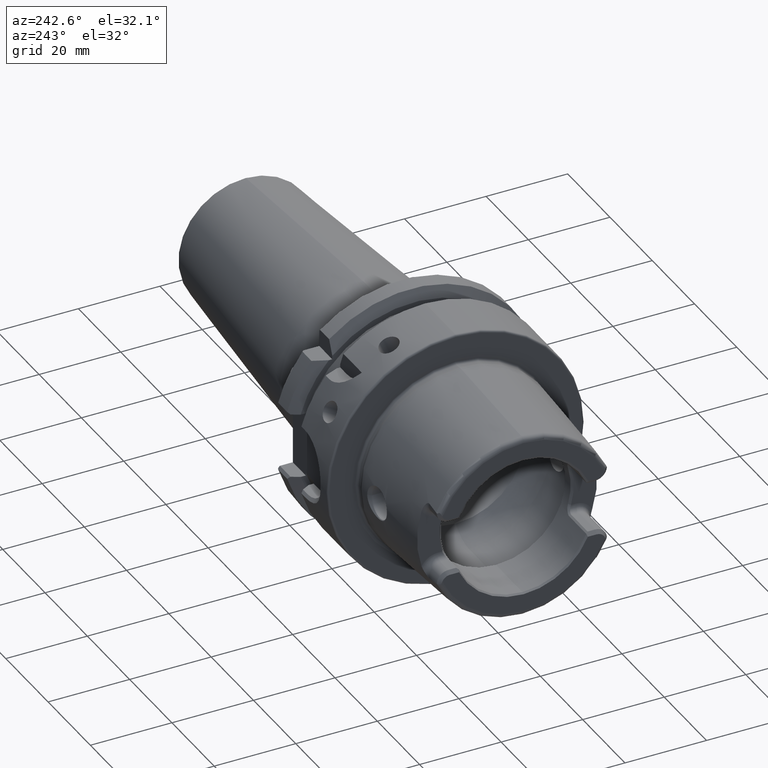
[diagram: clean part render]
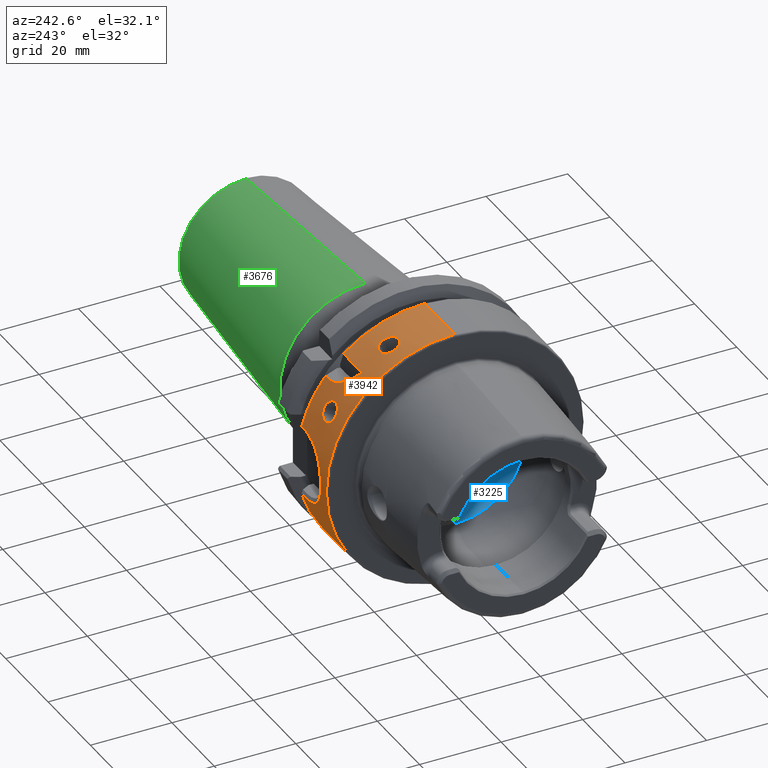
[diagram: same view with three faces highlighted in distinct colors, each labeled with its STEP entity id]
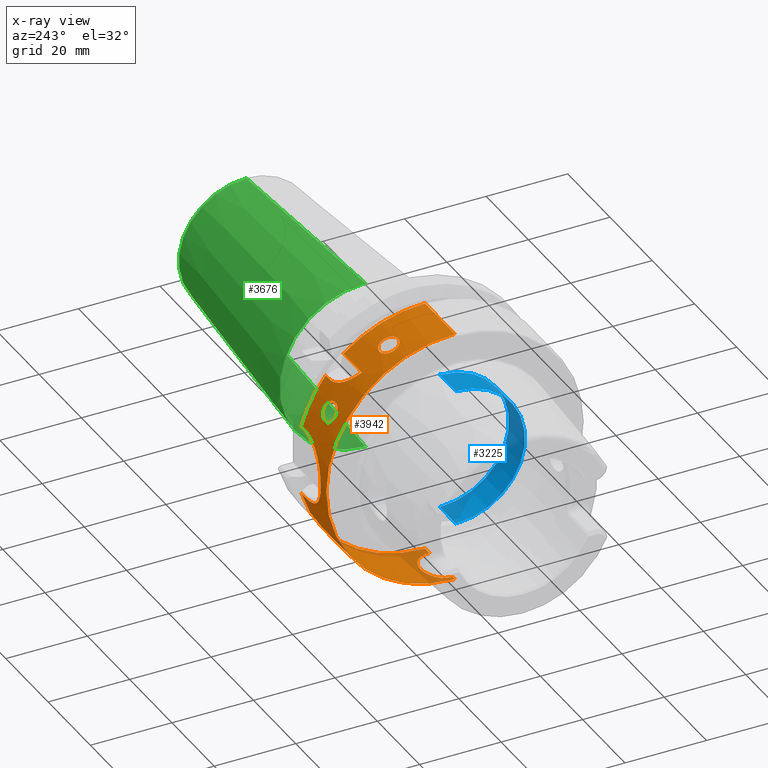
[diagram: x-ray of the same camera — body ghosted, the three highlighted faces saturated]
A machine part, auxiliary view with three faces highlighted in distinct colors.
The next image is the same camera in x-ray (body ghosted, the three faces saturated) — at least one of them is partly hidden behind the body in this view.
Their STEP definitions:

[orange] entity #3942 — the highlighted cylindrical surface (partial cylindrical patch) has radius 31.5 mm, axis along (1, 0, 0).
#711=DIRECTION('',(-1.E0,-1.152697855394E-12,0.E0));
#712=VECTOR('',#711,1.412250090457E1);
#713=CARTESIAN_POINT('',(1.462250090457E1,0.E0,3.15E1));
#714=LINE('',#713,#712);
#770=DIRECTION('',(-1.E0,0.E0,0.E0));
#771=VECTOR('',#770,2.122500904567E0);
#772=CARTESIAN_POINT('',(1.462250090457E1,0.E0,-3.15E1));
#773=LINE('',#772,#771);
#794=DIRECTION('',(-1.E0,-3.500326402276E-12,0.E0));
#795=VECTOR('',#794,1.E0);
#796=CARTESIAN_POINT('',(1.5E0,0.E0,-3.15E1));
#797=LINE('',#796,#795);
#811=CARTESIAN_POINT('',(5.E-1,0.E0,0.E0));
#812=DIRECTION('',(-1.E0,0.E0,0.E0));
#813=DIRECTION('',(0.E0,0.E0,1.E0));
#814=AXIS2_PLACEMENT_3D('',#811,#812,#813);
#816=CARTESIAN_POINT('',(1.25E1,0.E0,-3.15E1));
#817=CARTESIAN_POINT('',(1.25E1,3.591179016958E-1,-3.15E1));
#818=CARTESIAN_POINT('',(1.241877060514E1,1.049176716839E0,-3.148780969961E1));
#819=CARTESIAN_POINT('',(1.208888151745E1,2.007789554012E0,-3.144033464909E1));
#820=CARTESIAN_POINT('',(1.158303499725E1,2.863034778919E0,-3.137310892711E1));
#821=CARTESIAN_POINT('',(1.090471174494E1,3.623449915998E0,-3.129357789396E1));
#822=CARTESIAN_POINT('',(1.006459553458E1,4.261252464667E0,-3.121215533395E1));
#823=CARTESIAN_POINT('',(9.088026015445E0,4.740243014212E0,-3.114207085875E1));
#824=CARTESIAN_POINT('',(8.055144265708E0,5.024239826024E0,-3.109689332850E1));
#825=CARTESIAN_POINT('',(6.991255526220E0,5.118492193282E0,-3.108133183436E1));
#826=CARTESIAN_POINT('',(5.929304176130E0,5.021338939589E0,-3.109736870211E1));
#827=CARTESIAN_POINT('',(4.897654838810E0,4.734729497616E0,-3.114291627253E1));
#828=CARTESIAN_POINT('',(3.923322314250E0,4.253904907756E0,-3.121317796639E1));
#829=CARTESIAN_POINT('',(3.081999010349E0,3.611475324829E0,-3.129499592086E1));
#830=CARTESIAN_POINT('',(2.405524185626E0,2.847462453288E0,-3.137455446046E1));
#831=CARTESIAN_POINT('',(1.903178736620E0,1.990202842849E0,-3.144144823364E1));
#832=CARTESIAN_POINT('',(1.578888425808E0,1.035924841317E0,-3.148816306394E1));
#833=CARTESIAN_POINT('',(1.5E0,3.538898695661E-1,-3.15E1));
#834=CARTESIAN_POINT('',(1.5E0,0.E0,-3.15E1));
#836=CARTESIAN_POINT('',(1.462250090457E1,0.E0,0.E0));
#837=DIRECTION('',(1.E0,0.E0,0.E0));
#838=DIRECTION('',(0.E0,0.E0,-1.E0));
#839=AXIS2_PLACEMENT_3D('',#836,#837,#838);
#841=DIRECTION('',(1.E0,0.E0,0.E0));
#842=VECTOR('',#841,1.622500904567E0);
#843=CARTESIAN_POINT('',(1.3E1,3.030257052423E1,-8.602570524226E0));
#844=LINE('',#843,#842);
#845=CARTESIAN_POINT('',(1.3E1,3.030257052423E1,-8.602570524226E0));
#846=CARTESIAN_POINT('',(1.235541835287E1,3.030257052423E1,-8.602570524226E0));
#847=CARTESIAN_POINT('',(1.109372968304E1,3.033423153458E1,-8.492196080456E0));
#848=CARTESIAN_POINT('',(9.248264611222E0,3.046933517118E1,-8.000909647176E0));
#849=CARTESIAN_POINT('',(7.555884268441E0,3.066964465669E1,-7.205952655409E0));
#850=CARTESIAN_POINT('',(6.088763746981E0,3.090017764345E1,-6.155508171550E0));
#851=CARTESIAN_POINT('',(4.907613818030E0,3.112281076593E1,-4.919449967846E0));
#852=CARTESIAN_POINT('',(4.035296228860E0,3.130752418742E1,-3.569140413675E0));
#853=CARTESIAN_POINT('',(3.467126615443E0,3.143679507039E1,-2.158791178254E0));
#854=CARTESIAN_POINT('',(3.188348549717E0,3.150274417315E1,-7.219689524247E-1));
#855=CARTESIAN_POINT('',(3.188351309952E0,3.150274350794E1,7.219960352426E-1));
#856=CARTESIAN_POINT('',(3.467133324851E0,3.143679352027E1,2.158810680109E0));
#857=CARTESIAN_POINT('',(4.035299491244E0,3.130752347964E1,3.569145798460E0));
#858=CARTESIAN_POINT('',(4.907619317801E0,3.112280964165E1,4.919457341111E0));
#859=CARTESIAN_POINT('',(6.088770538561E0,3.090017648968E1,6.155513669787E0));
#860=CARTESIAN_POINT('',(7.555887404237E0,3.066964426780E1,7.205954206590E0));
#861=CARTESIAN_POINT('',(9.248266760131E0,3.046933495101E1,8.000910488809E0));
#862=CARTESIAN_POINT('',(1.109373293521E1,3.033423138205E1,8.492196614850E0));
#863=CARTESIAN_POINT('',(1.235541965801E1,3.030257052423E1,8.602570524226E0));
#864=CARTESIAN_POINT('',(1.3E1,3.030257052423E1,8.602570524226E0));
#866=DIRECTION('',(1.E0,0.E0,0.E0));
#867=VECTOR('',#866,1.622500904567E0);
#868=CARTESIAN_POINT('',(1.3E1,3.030257052423E1,8.602570524226E0));
#869=LINE('',#868,#867);
#870=CARTESIAN_POINT('',(1.462250090457E1,0.E0,0.E0));
#871=DIRECTION('',(1.E0,0.E0,0.E0));
#872=DIRECTION('',(0.E0,9.619863658485E-1,2.730974769596E-1));
#873=AXIS2_PLACEMENT_3D('',#870,#871,#872);
#875=DIRECTION('',(1.E0,0.E0,0.E0));
#876=VECTOR('',#875,1.622500904567E0);
#877=CARTESIAN_POINT('',(1.3E1,2.433618704728E1,2.E1));
#878=LINE('',#877,#876);
#879=CARTESIAN_POINT('',(5.888286096344E0,2.E1,2.433618704728E1));
#880=CARTESIAN_POINT('',(5.979841110901E0,2.021624479285E1,2.415847244274E1));
#881=CARTESIAN_POINT('',(6.178964055433E0,2.063505528873E1,2.380463264103E1));
#882=CARTESIAN_POINT('',(6.529290349012E0,2.122336114799E1,2.328123619400E1));
#883=CARTESIAN_POINT('',(6.934185786704E0,2.177041926319E1,2.277004743860E1));
#884=CARTESIAN_POINT('',(7.395470581921E0,2.227363444044E1,2.227755184076E1));
#885=CARTESIAN_POINT('',(7.915511267172E0,2.273117164906E1,2.180996325233E1));
#886=CARTESIAN_POINT('',(8.494651142790E0,2.313957745525E1,2.137559509570E1));
#887=CARTESIAN_POINT('',(9.133373456560E0,2.349590004479E1,2.098269866103E1));
#888=CARTESIAN_POINT('',(9.827602999986E0,2.379530983774E1,2.064193255373E1));
#889=CARTESIAN_POINT('',(1.057250362730E1,2.403390563889E1,2.036307977068E1));
#890=CARTESIAN_POINT('',(1.135757184338E1,2.420737036833E1,2.015610491514E1));
#891=CARTESIAN_POINT('',(1.217313527813E1,2.431273139834E1,2.002859294578E1));
#892=CARTESIAN_POINT('',(1.272260838370E1,2.433618704728E1,2.E1));
#893=CARTESIAN_POINT('',(1.3E1,2.433618704728E1,2.E1));
#895=DIRECTION('',(1.E0,0.E0,0.E0));
#896=VECTOR('',#895,8.734214808223E0);
#897=CARTESIAN_POINT('',(5.888286096344E0,2.E1,2.433618704728E1));
#898=LINE('',#897,#896);
#899=CARTESIAN_POINT('',(1.462250090457E1,0.E0,0.E0));
#900=DIRECTION('',(1.E0,0.E0,0.E0));
#901=DIRECTION('',(0.E0,6.349206349206E-1,7.725773665802E-1));
#902=AXIS2_PLACEMENT_3D('',#899,#900,#901);
#904=CARTESIAN_POINT('',(7.E0,1.048792601377E1,2.970275084785E1));
#905=CARTESIAN_POINT('',(6.802284525844E0,1.048792601377E1,2.970275084785E1));
#906=CARTESIAN_POINT('',(6.415956362855E0,1.053000828392E1,2.968795788573E1));
#907=CARTESIAN_POINT('',(5.835520236530E0,1.073329285939E1,2.961539446600E1));
#908=CARTESIAN_POINT('',(5.338865174867E0,1.105313070426E1,2.949799642861E1));
#909=CARTESIAN_POINT('',(4.933147778579E0,1.147607742680E1,2.933648695426E1));
#910=CARTESIAN_POINT('',(4.650970895156E0,1.196336414671E1,2.914163101280E1));
#911=CARTESIAN_POINT('',(4.497318778306E0,1.251103674698E1,2.891098269294E1));
#912=CARTESIAN_POINT('',(4.489867977867E0,1.306055214852E1,2.866698467963E1));
#913=CARTESIAN_POINT('',(4.632528901150E0,1.361030093004E1,2.840989978286E1));
#914=CARTESIAN_POINT('',(4.911239559409E0,1.409536526788E1,2.817188938195E1));
#915=CARTESIAN_POINT('',(5.318335564972E0,1.450994163974E1,2.796011300701E1));
#916=CARTESIAN_POINT('',(5.817706515600E0,1.481904178764E1,2.779698994859E1));
#917=CARTESIAN_POINT('',(6.407436795489E0,1.501546414401E1,2.769101327978E1));
#918=CARTESIAN_POINT('',(6.799276851427E0,1.505565330198E1,2.766906763247E1));
#919=CARTESIAN_POINT('',(7.E0,1.505565330198E1,2.766906763247E1));
#921=CARTESIAN_POINT('',(7.E0,1.505565330198E1,2.766906763247E1));
#922=CARTESIAN_POINT('',(7.216758209596E0,1.505565330198E1,2.766906763247E1));
#923=CARTESIAN_POINT('',(7.638088338046E0,1.500779870639E1,2.769518275357E1));
#924=CARTESIAN_POINT('',(8.254145299815E0,1.478880460707E1,2.781326796640E1));
#925=CARTESIAN_POINT('',(8.792406388011E0,1.442264801340E1,2.800557112396E1));
#926=CARTESIAN_POINT('',(9.190984559259E0,1.395502564772E1,2.824208031562E1));
#927=CARTESIAN_POINT('',(9.442403111712E0,1.340849415034E1,2.850610422381E1));
#928=CARTESIAN_POINT('',(9.528471297477E0,1.281403684970E1,2.877838375227E1));
#929=CARTESIAN_POINT('',(9.443708466172E0,1.221757970337E1,2.903644683210E1));
#930=CARTESIAN_POINT('',(9.193934997278E0,1.165486776358E1,2.926640933960E1));
#931=CARTESIAN_POINT('',(8.796093757839E0,1.116470616185E1,2.945632212539E1));
#932=CARTESIAN_POINT('',(8.254947878404E0,1.077379544614E1,2.960088540165E1));
#933=CARTESIAN_POINT('',(7.638227494305E0,1.053939599961E1,2.968464561730E1));
#934=CARTESIAN_POINT('',(7.216695711763E0,1.048792601377E1,2.970275084785E1));
#935=CARTESIAN_POINT('',(7.E0,1.048792601377E1,2.970275084785E1));
#937=CARTESIAN_POINT('',(7.E0,2.594374928177E1,1.786538197757E1));
#938=CARTESIAN_POINT('',(6.802284525844E0,2.594374928177E1,1.786538197757E1));
#939=CARTESIAN_POINT('',(6.415956362855E0,2.596909946851E1,1.782867888203E1));
#940=CARTESIAN_POINT('',(5.835520236530E0,2.609090843678E1,1.765048616683E1));
#941=CARTESIAN_POINT('',(5.338865174867E0,2.628065785371E1,1.736751319113E1));
#942=CARTESIAN_POINT('',(4.933147778579E0,2.652789605283E1,1.698824743562E1));
#943=CARTESIAN_POINT('',(4.650970895156E0,2.680758584166E1,1.654418571992E1));
#944=CARTESIAN_POINT('',(4.497318778306E0,2.711509060175E1,1.603567343191E1));
#945=CARTESIAN_POINT('',(4.489867977867E0,2.741623946645E1,1.551527784361E1));
#946=CARTESIAN_POINT('',(4.632528901150E0,2.770988486243E1,1.498415756688E1));
#947=CARTESIAN_POINT('',(4.911239559409E0,2.796241115156E1,1.450648944351E1));
#948=CARTESIAN_POINT('',(5.318335564972E0,2.817333145190E1,1.409147687985E1));
#949=CARTESIAN_POINT('',(5.817706515600E0,2.832751739645E1,1.377782304500E1));
#950=CARTESIAN_POINT('',(6.407436795489E0,2.842413489782E1,1.357663195463E1));
#951=CARTESIAN_POINT('',(6.799276851427E0,2.844374928177E1,1.353525495865E1));
#952=CARTESIAN_POINT('',(7.E0,2.844374928177E1,1.353525495865E1));
#954=CARTESIAN_POINT('',(7.E0,2.844374928177E1,1.353525495865E1));
#955=CARTESIAN_POINT('',(7.216758209596E0,2.844374928177E1,1.353525495865E1));
#956=CARTESIAN_POINT('',(7.638088338046E0,2.842038418372E1,1.358451076097E1));
#957=CARTESIAN_POINT('',(8.254145299815E0,2.831262298232E1,1.380876520685E1));
#958=CARTESIAN_POINT('',(8.792406388011E0,2.812942903542E1,1.417956317518E1));
#959=CARTESIAN_POINT('',(9.190984559259E0,2.789013120952E1,1.464576466074E1));
#960=CARTESIAN_POINT('',(9.442403111712E0,2.760316729966E1,1.518060764346E1));
#961=CARTESIAN_POINT('',(9.528471297477E0,2.728228313235E1,1.575029964364E1));
#962=CARTESIAN_POINT('',(9.443708466172E0,2.695142483705E1,1.630966577509E1));
#963=CARTESIAN_POINT('',(9.193934997278E0,2.663134988530E1,1.682646313122E1));
#964=CARTESIAN_POINT('',(8.796093757839E0,2.634642875422E1,1.726821556311E1));
#965=CARTESIAN_POINT('',(8.254947878404E0,2.611514750374E1,1.761494126403E1));
#966=CARTESIAN_POINT('',(7.638227494305E0,2.597474738751E1,1.782048123975E1));
#967=CARTESIAN_POINT('',(7.216695711763E0,2.594374928177E1,1.786538197757E1));
#968=CARTESIAN_POINT('',(7.E0,2.594374928177E1,1.786538197757E1));
#2661=CARTESIAN_POINT('',(5.888286096344E0,2.E1,2.433618704728E1));
#2662=CARTESIAN_POINT('',(1.462250090457E1,2.E1,2.433618704728E1));
#2663=VERTEX_POINT('',#2661);
#2664=VERTEX_POINT('',#2662);
#2665=CARTESIAN_POINT('',(1.3E1,2.433618704728E1,2.E1));
#2666=CARTESIAN_POINT('',(1.462250090457E1,2.433618704728E1,2.E1));
#2667=VERTEX_POINT('',#2665);
#2668=VERTEX_POINT('',#2666);
#2681=CARTESIAN_POINT('',(1.462250090457E1,0.E0,3.15E1));
#2682=VERTEX_POINT('',#2681);
#2824=VERTEX_POINT('',#816);
#2825=VERTEX_POINT('',#834);
#2834=CARTESIAN_POINT('',(1.462250090457E1,0.E0,-3.15E1));
#2835=VERTEX_POINT('',#2834);
#2881=CARTESIAN_POINT('',(1.3E1,3.030257052423E1,8.602570524226E0));
#2882=CARTESIAN_POINT('',(1.462250090457E1,3.030257052423E1,8.602570524226E0));
#2883=VERTEX_POINT('',#2881);
#2884=VERTEX_POINT('',#2882);
#2885=VERTEX_POINT('',#845);
#2886=CARTESIAN_POINT('',(1.462250090457E1,3.030257052423E1,-8.602570524226E0));
#2887=VERTEX_POINT('',#2886);
#2906=CARTESIAN_POINT('',(5.E-1,0.E0,3.15E1));
#2907=CARTESIAN_POINT('',(5.E-1,0.E0,-3.15E1));
#2908=VERTEX_POINT('',#2906);
#2909=VERTEX_POINT('',#2907);
#2930=VERTEX_POINT('',#904);
#2931=VERTEX_POINT('',#919);
#2938=VERTEX_POINT('',#937);
#2939=VERTEX_POINT('',#952);
#3899=CARTESIAN_POINT('',(0.E0,0.E0,0.E0));
#3900=DIRECTION('',(1.E0,0.E0,0.E0));
#3901=DIRECTION('',(0.E0,0.E0,1.E0));
#3902=AXIS2_PLACEMENT_3D('',#3899,#3900,#3901);
#3903=CYLINDRICAL_SURFACE('',#3902,3.15E1);
#3905=ORIENTED_EDGE('',*,*,#3904,.T.);
#3906=ORIENTED_EDGE('',*,*,#3863,.F.);
#3908=ORIENTED_EDGE('',*,*,#3907,.F.);
#3909=ORIENTED_EDGE('',*,*,#3859,.F.);
#3911=ORIENTED_EDGE('',*,*,#3910,.T.);
#3912=ORIENTED_EDGE('',*,*,#3873,.F.);
#3914=ORIENTED_EDGE('',*,*,#3913,.T.);
#3916=ORIENTED_EDGE('',*,*,#3915,.T.);
#3918=ORIENTED_EDGE('',*,*,#3917,.T.);
#3920=ORIENTED_EDGE('',*,*,#3919,.F.);
#3922=ORIENTED_EDGE('',*,*,#3921,.F.);
#3924=ORIENTED_EDGE('',*,*,#3923,.T.);
#3926=ORIENTED_EDGE('',*,*,#3925,.T.);
#3927=ORIENTED_EDGE('',*,*,#3843,.T.);
#3928=EDGE_LOOP('',(#3905,#3906,#3908,#3909,#3911,#3912,#3914,#3916,#3918,#3920,
#3922,#3924,#3926,#3927));
#3929=FACE_OUTER_BOUND('',#3928,.F.);
#3931=ORIENTED_EDGE('',*,*,#3930,.F.);
#3933=ORIENTED_EDGE('',*,*,#3932,.F.);
#3934=EDGE_LOOP('',(#3931,#3933));
#3935=FACE_BOUND('',#3934,.F.);
#3937=ORIENTED_EDGE('',*,*,#3936,.F.);
#3939=ORIENTED_EDGE('',*,*,#3938,.F.);
#3940=EDGE_LOOP('',(#3937,#3939));
#3941=FACE_BOUND('',#3940,.F.);
#3942=ADVANCED_FACE('',(#3929,#3935,#3941),#3903,.T.);
#815=CIRCLE('',#814,3.15E1);
#835=B_SPLINE_CURVE_WITH_KNOTS('',3,(#816,#817,#818,#819,#820,#821,#822,#823,
#824,#825,#826,#827,#828,#829,#830,#831,#832,#833,#834),.UNSPECIFIED.,.F.,.F.,
(4,1,1,1,1,1,1,1,1,1,1,1,1,1,1,1,4),(0.E0,6.25E-2,1.25E-1,1.875E-1,2.5E-1,
3.125E-1,3.75E-1,4.375E-1,5.E-1,5.625E-1,6.25E-1,6.875E-1,7.5E-1,8.125E-1,
8.75E-1,9.375E-1,1.E0),.UNSPECIFIED.);
#840=CIRCLE('',#839,3.15E1);
#865=B_SPLINE_CURVE_WITH_KNOTS('',3,(#845,#846,#847,#848,#849,#850,#851,#852,
#853,#854,#855,#856,#857,#858,#859,#860,#861,#862,#863,#864),.UNSPECIFIED.,.F.,
.F.,(4,1,1,1,1,1,1,1,1,1,1,1,1,1,1,1,1,4),(0.E0,5.882352941176E-2,
1.176470588235E-1,1.764705882353E-1,2.352941176471E-1,2.941176470588E-1,
3.529411764706E-1,4.117647058824E-1,4.705882352941E-1,5.294117647059E-1,
5.882352941176E-1,6.470588235294E-1,7.058823529412E-1,7.647058823529E-1,
8.235294117647E-1,8.823529411765E-1,9.411764705882E-1,1.E0),.UNSPECIFIED.);
#874=CIRCLE('',#873,3.15E1);
#894=B_SPLINE_CURVE_WITH_KNOTS('',3,(#879,#880,#881,#882,#883,#884,#885,#886,
#887,#888,#889,#890,#891,#892,#893),.UNSPECIFIED.,.F.,.F.,(4,1,1,1,1,1,1,1,1,1,
1,1,4),(0.E0,8.333333333333E-2,1.666666666667E-1,2.5E-1,3.333333333333E-1,
4.166666666667E-1,5.E-1,5.833333333333E-1,6.666666666667E-1,7.5E-1,
8.333333333333E-1,9.166666666667E-1,1.E0),.UNSPECIFIED.);
#903=CIRCLE('',#902,3.15E1);
#920=B_SPLINE_CURVE_WITH_KNOTS('',3,(#904,#905,#906,#907,#908,#909,#910,#911,
#912,#913,#914,#915,#916,#917,#918,#919),.UNSPECIFIED.,.F.,.F.,(4,1,1,1,1,1,1,1,
1,1,1,1,1,4),(0.E0,7.692307692308E-2,1.538461538462E-1,2.307692307692E-1,
3.076923076923E-1,3.846153846154E-1,4.615384615385E-1,5.384615384615E-1,
6.153846153846E-1,6.923076923077E-1,7.692307692308E-1,8.461538461538E-1,
9.230769230769E-1,1.E0),.UNSPECIFIED.);
#936=B_SPLINE_CURVE_WITH_KNOTS('',3,(#921,#922,#923,#924,#925,#926,#927,#928,
#929,#930,#931,#932,#933,#934,#935),.UNSPECIFIED.,.F.,.F.,(4,1,1,1,1,1,1,1,1,1,
1,1,4),(0.E0,8.333333333333E-2,1.666666666667E-1,2.5E-1,3.333333333333E-1,
4.166666666667E-1,5.E-1,5.833333333333E-1,6.666666666667E-1,7.5E-1,
8.333333333333E-1,9.166666666667E-1,1.E0),.UNSPECIFIED.);
#953=B_SPLINE_CURVE_WITH_KNOTS('',3,(#937,#938,#939,#940,#941,#942,#943,#944,
#945,#946,#947,#948,#949,#950,#951,#952),.UNSPECIFIED.,.F.,.F.,(4,1,1,1,1,1,1,1,
1,1,1,1,1,4),(0.E0,7.692307692308E-2,1.538461538462E-1,2.307692307692E-1,
3.076923076923E-1,3.846153846154E-1,4.615384615385E-1,5.384615384615E-1,
6.153846153846E-1,6.923076923077E-1,7.692307692308E-1,8.461538461538E-1,
9.230769230769E-1,1.E0),.UNSPECIFIED.);
#969=B_SPLINE_CURVE_WITH_KNOTS('',3,(#954,#955,#956,#957,#958,#959,#960,#961,
#962,#963,#964,#965,#966,#967,#968),.UNSPECIFIED.,.F.,.F.,(4,1,1,1,1,1,1,1,1,1,
1,1,4),(0.E0,8.333333333333E-2,1.666666666667E-1,2.5E-1,3.333333333333E-1,
4.166666666667E-1,5.E-1,5.833333333333E-1,6.666666666667E-1,7.5E-1,
8.333333333333E-1,9.166666666667E-1,1.E0),.UNSPECIFIED.);
#3843=EDGE_CURVE('',#2682,#2908,#714,.T.);
#3859=EDGE_CURVE('',#2835,#2824,#773,.T.);
#3863=EDGE_CURVE('',#2825,#2909,#797,.T.);
#3873=EDGE_CURVE('',#2885,#2887,#844,.T.);
#3904=EDGE_CURVE('',#2908,#2909,#815,.T.);
#3907=EDGE_CURVE('',#2824,#2825,#835,.T.);
#3910=EDGE_CURVE('',#2835,#2887,#840,.T.);
#3913=EDGE_CURVE('',#2885,#2883,#865,.T.);
#3915=EDGE_CURVE('',#2883,#2884,#869,.T.);
#3917=EDGE_CURVE('',#2884,#2668,#874,.T.);
#3919=EDGE_CURVE('',#2667,#2668,#878,.T.);
#3921=EDGE_CURVE('',#2663,#2667,#894,.T.);
#3923=EDGE_CURVE('',#2663,#2664,#898,.T.);
#3925=EDGE_CURVE('',#2664,#2682,#903,.T.);
#3930=EDGE_CURVE('',#2930,#2931,#920,.T.);
#3932=EDGE_CURVE('',#2931,#2930,#936,.T.);
#3936=EDGE_CURVE('',#2938,#2939,#953,.T.);
#3938=EDGE_CURVE('',#2939,#2938,#969,.T.);

[blue] entity #3225 — the highlighted cylindrical surface (partial cylindrical patch) has radius 17 mm, axis along (1, 0, 0).
#254=DIRECTION('',(-1.E0,0.E0,0.E0));
#255=VECTOR('',#254,7.579836946705E0);
#256=CARTESIAN_POINT('',(7.670843802411E0,0.E0,-1.7E1));
#257=LINE('',#256,#255);
#258=CARTESIAN_POINT('',(7.670843802411E0,0.E0,0.E0));
#259=DIRECTION('',(1.E0,0.E0,0.E0));
#260=DIRECTION('',(0.E0,0.E0,1.E0));
#261=AXIS2_PLACEMENT_3D('',#258,#259,#260);
#263=DIRECTION('',(-1.E0,0.E0,0.E0));
#264=VECTOR('',#263,7.579836946705E0);
#265=CARTESIAN_POINT('',(7.670843802411E0,0.E0,1.7E1));
#266=LINE('',#265,#264);
#267=CARTESIAN_POINT('',(9.100685570619E-2,0.E0,0.E0));
#268=DIRECTION('',(1.E0,0.E0,0.E0));
#269=DIRECTION('',(0.E0,0.E0,1.E0));
#270=AXIS2_PLACEMENT_3D('',#267,#268,#269);
#2541=CARTESIAN_POINT('',(9.100685570619E-2,0.E0,-1.7E1));
#2542=CARTESIAN_POINT('',(9.100685570619E-2,0.E0,1.7E1));
#2543=VERTEX_POINT('',#2541);
#2544=VERTEX_POINT('',#2542);
#2549=CARTESIAN_POINT('',(7.670843802411E0,0.E0,-1.7E1));
#2550=VERTEX_POINT('',#2549);
#2551=CARTESIAN_POINT('',(7.670843802411E0,0.E0,1.7E1));
#2552=VERTEX_POINT('',#2551);
#3212=CARTESIAN_POINT('',(0.E0,0.E0,0.E0));
#3213=DIRECTION('',(1.E0,0.E0,0.E0));
#3214=DIRECTION('',(0.E0,0.E0,1.E0));
#3215=AXIS2_PLACEMENT_3D('',#3212,#3213,#3214);
#3216=CYLINDRICAL_SURFACE('',#3215,1.7E1);
#3217=ORIENTED_EDGE('',*,*,#3172,.F.);
#3219=ORIENTED_EDGE('',*,*,#3218,.F.);
#3220=ORIENTED_EDGE('',*,*,#3176,.T.);
#3222=ORIENTED_EDGE('',*,*,#3221,.T.);
#3223=EDGE_LOOP('',(#3217,#3219,#3220,#3222));
#3224=FACE_OUTER_BOUND('',#3223,.F.);
#3225=ADVANCED_FACE('',(#3224),#3216,.F.);
#262=CIRCLE('',#261,1.7E1);
#271=CIRCLE('',#270,1.7E1);
#3172=EDGE_CURVE('',#2550,#2543,#257,.T.);
#3176=EDGE_CURVE('',#2552,#2544,#266,.T.);
#3218=EDGE_CURVE('',#2552,#2550,#262,.T.);
#3221=EDGE_CURVE('',#2544,#2543,#271,.T.);

[green] entity #3676 — the highlighted conical surface has half-angle 4.5 deg.
#581=CARTESIAN_POINT('',(9.907845909573E1,0.E0,0.E0));
#582=DIRECTION('',(1.E0,0.E0,0.E0));
#583=DIRECTION('',(0.E0,0.E0,-1.E0));
#584=AXIS2_PLACEMENT_3D('',#581,#582,#583);
#586=DIRECTION('',(-9.969173337331E-1,0.E0,-7.845909572788E-2));
#587=VECTOR('',#586,5.643033630266E1);
#588=CARTESIAN_POINT('',(9.907845909573E1,0.E0,-1.657252684207E1));
#589=LINE('',#588,#587);
#590=DIRECTION('',(-9.969173337331E-1,0.E0,7.845909572788E-2));
#591=VECTOR('',#590,5.643033630266E1);
#592=CARTESIAN_POINT('',(9.907845909573E1,0.E0,1.657252684207E1));
#593=LINE('',#592,#591);
#612=CARTESIAN_POINT('',(4.282207868721E1,0.E0,0.E0));
#613=DIRECTION('',(1.E0,0.E0,0.E0));
#614=DIRECTION('',(0.E0,0.E0,-1.E0));
#615=AXIS2_PLACEMENT_3D('',#612,#613,#614);
#2955=CARTESIAN_POINT('',(9.907845909573E1,0.E0,-1.657252684207E1));
#2957=VERTEX_POINT('',#2955);
#2958=CARTESIAN_POINT('',(4.282207868721E1,0.E0,-2.1E1));
#2959=VERTEX_POINT('',#2958);
#2977=CARTESIAN_POINT('',(9.907845909573E1,0.E0,1.657252684207E1));
#2979=VERTEX_POINT('',#2977);
#2980=CARTESIAN_POINT('',(4.282207868721E1,0.E0,2.1E1));
#2981=VERTEX_POINT('',#2980);
#3662=CARTESIAN_POINT('',(7.095026889147E1,0.E0,0.E0));
#3663=DIRECTION('',(-1.E0,0.E0,0.E0));
#3664=DIRECTION('',(0.E0,0.E0,-1.E0));
#3665=AXIS2_PLACEMENT_3D('',#3662,#3663,#3664);
#3666=CONICAL_SURFACE('',#3665,1.878626342104E1,4.500000000002E0);
#3668=ORIENTED_EDGE('',*,*,#3667,.F.);
#3669=ORIENTED_EDGE('',*,*,#3657,.T.);
#3671=ORIENTED_EDGE('',*,*,#3670,.T.);
#3673=ORIENTED_EDGE('',*,*,#3672,.F.);
#3674=EDGE_LOOP('',(#3668,#3669,#3671,#3673));
#3675=FACE_OUTER_BOUND('',#3674,.F.);
#3676=ADVANCED_FACE('',(#3675),#3666,.T.);
#585=CIRCLE('',#584,1.657252684207E1);
#616=CIRCLE('',#615,2.1E1);
#3657=EDGE_CURVE('',#2957,#2979,#585,.T.);
#3667=EDGE_CURVE('',#2957,#2959,#589,.T.);
#3670=EDGE_CURVE('',#2979,#2981,#593,.T.);
#3672=EDGE_CURVE('',#2959,#2981,#616,.T.);